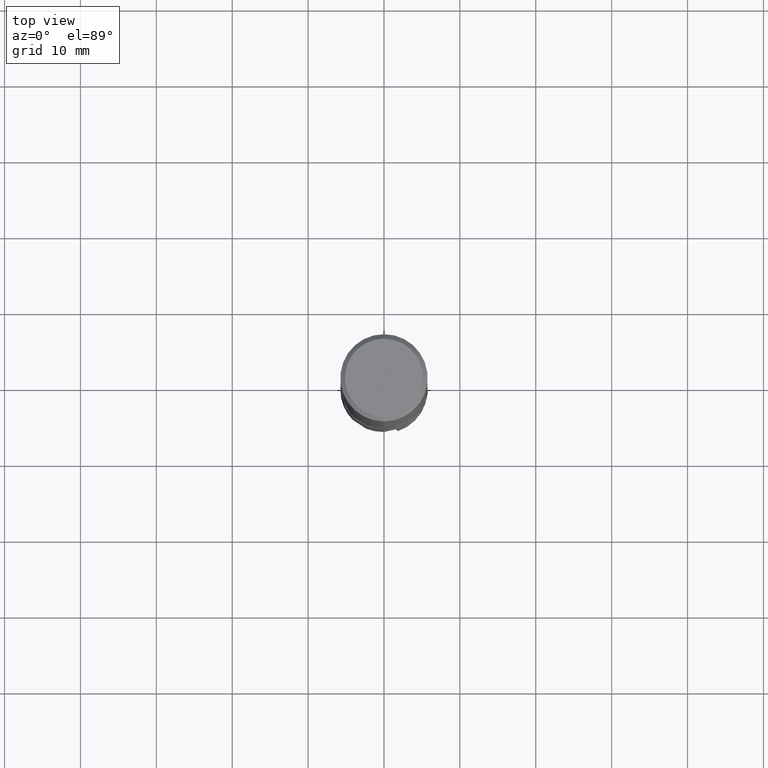
[diagram: clean part render]
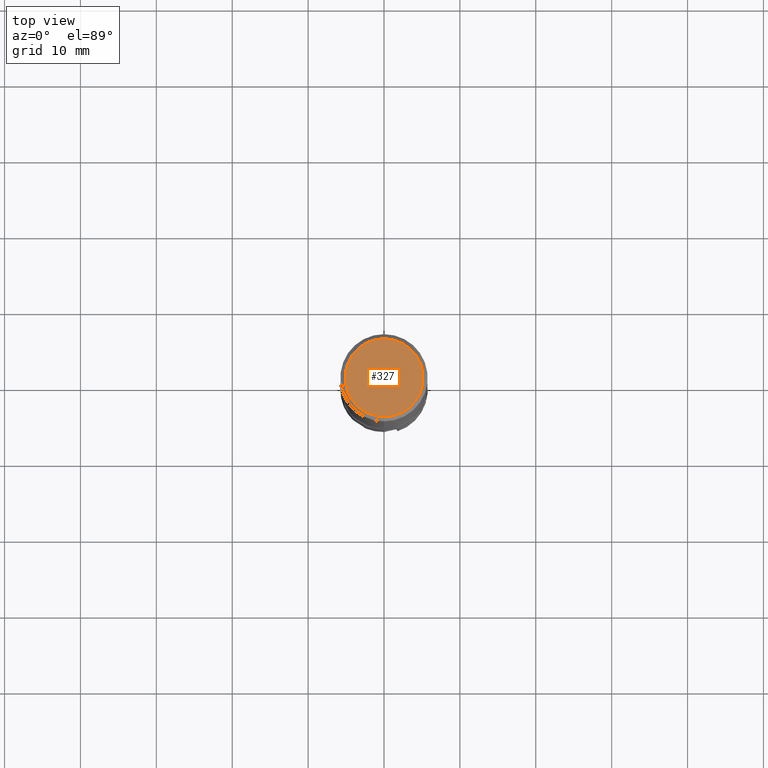
[diagram: same view with one face highlighted and labeled with its STEP entity id]
A machine part, top view. The second image highlights one B-rep face of the part: STEP entity #327.
In plain terms, the highlighted planar face has unit normal (-0, 0, 1).
Its self-contained STEP definition (entity closure, byte-faithful):
#297=EDGE_CURVE('',#343,#483,#773,.T.);
#327=ADVANCED_FACE('',(#805),#806,.T.);
#343=VERTEX_POINT('',#823);
#347=EDGE_CURVE('',#483,#343,#827,.T.);
#483=VERTEX_POINT('',#978);
#773=CIRCLE('',#1426,5.15);
#805=FACE_OUTER_BOUND('',#1911,.T.);
#806=PLANE('',#1912);
#823=CARTESIAN_POINT('',(0.0,5.15,0.0));
#827=CIRCLE('',#2405,5.15);
#978=CARTESIAN_POINT('',(6.30672272218524E-016,-5.15,0.0));
#1426=AXIS2_PLACEMENT_3D('',#6917,#6918,#6919);
#1911=EDGE_LOOP('',(#6931,#6932));
#1912=AXIS2_PLACEMENT_3D('',#6933,#6934,#6935);
#2405=AXIS2_PLACEMENT_3D('',#6945,#6946,#6947);
#6917=CARTESIAN_POINT('',(0.0,0.0,0.0));
#6918=DIRECTION('',(0.0,0.0,-1.0));
#6919=DIRECTION('',(0.0,1.0,0.0));
#6931=ORIENTED_EDGE('',*,*,#297,.F.);
#6932=ORIENTED_EDGE('',*,*,#347,.F.);
#6933=CARTESIAN_POINT('',(0.0,2.575,0.0));
#6934=DIRECTION('',(-0.0,0.0,1.0));
#6935=DIRECTION('',(0.0,-1.0,0.0));
#6945=CARTESIAN_POINT('',(0.0,0.0,0.0));
#6946=DIRECTION('',(0.0,0.0,-1.0));
#6947=DIRECTION('',(0.0,1.0,0.0));